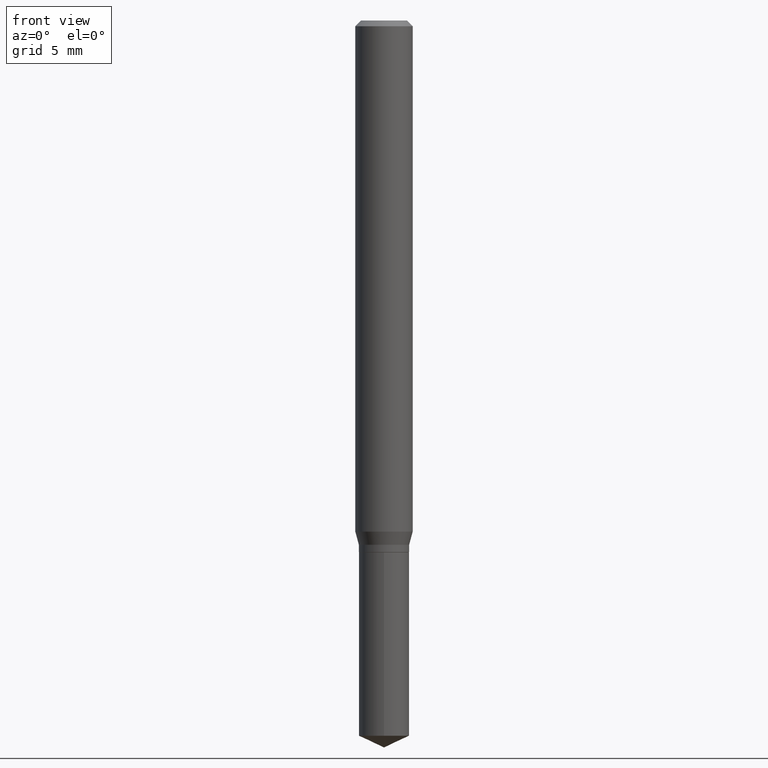
[diagram: clean part render]
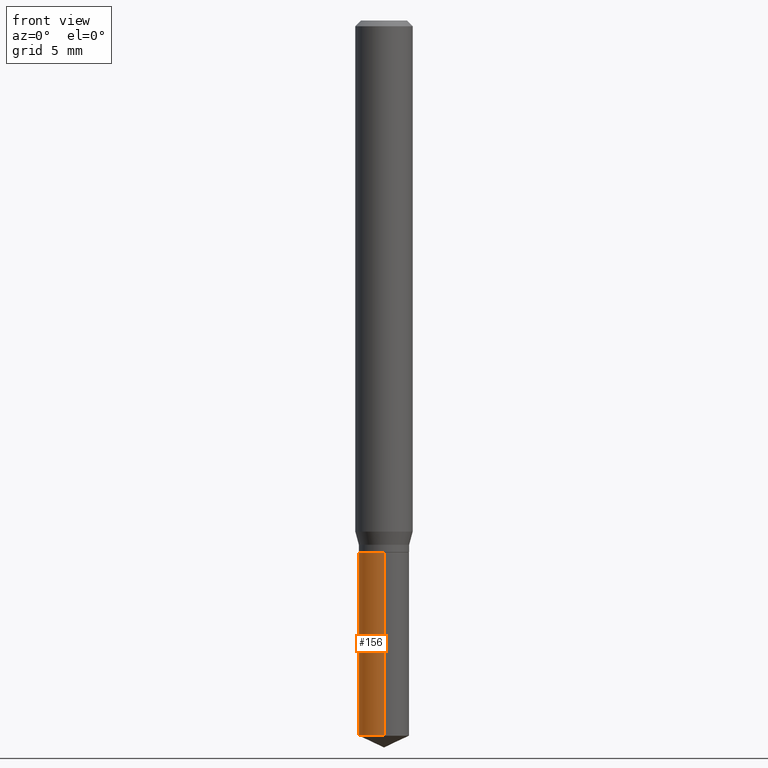
[diagram: same view with one face highlighted and labeled with its STEP entity id]
A machine part, front view. The second image highlights one B-rep face of the part: STEP entity #156.
In plain terms, the highlighted cylindrical surface (edge-blend (fillet) strip) has radius 1.3145 mm, axis along (-0, 0, 1).
Its self-contained STEP definition (entity closure, byte-faithful):
#27 = AXIS2_PLACEMENT_3D ( 'NONE', #460, #166, #282 ) ;
#60 = DIRECTION ( 'NONE',  ( -6.982962677686265133E-15, -1.000000000000000000, 2.639466660545181459E-15 ) ) ;
#61 = EDGE_CURVE ( 'NONE', #219, #287, #354, .T. ) ;
#77 = CYLINDRICAL_SURFACE ( 'NONE', #158, 0.05175000000000000433 ) ;
#98 = EDGE_CURVE ( 'NONE', #437, #219, #340, .T. ) ;
#131 = ORIENTED_EDGE ( 'NONE', *, *, #98, .F. ) ;
#137 = DIRECTION ( 'NONE',  ( -2.445458899330790108E-29, 3.491495526022433599E-15, 1.000000000000000000 ) ) ;
#156 = ADVANCED_FACE ( 'NONE', ( #306 ), #77, .T. ) ;
#158 = AXIS2_PLACEMENT_3D ( 'NONE', #485, #210, #60 ) ;
#160 = AXIS2_PLACEMENT_3D ( 'NONE', #161, #413, #418 ) ;
#161 = CARTESIAN_POINT ( 'NONE',  ( 2.676565608369631794E-29, -3.821426325363822773E-15, -1.094499999999999806 ) ) ;
#166 = DIRECTION ( 'NONE',  ( -2.445458899330790108E-29, 3.491495526022433205E-15, 1.000000000000000000 ) ) ;
#210 = DIRECTION ( 'NONE',  ( -2.445458899330790108E-29, 3.491495526022433205E-15, 1.000000000000000000 ) ) ;
#219 = VERTEX_POINT ( 'NONE', #273 ) ;
#224 = EDGE_CURVE ( 'NONE', #295, #287, #276, .T. ) ;
#228 = DIRECTION ( 'NONE',  ( -2.445458899330790108E-29, 3.491495526022433599E-15, 1.000000000000000000 ) ) ;
#230 = EDGE_CURVE ( 'NONE', #437, #295, #377, .T. ) ;
#232 = CARTESIAN_POINT ( 'NONE',  ( 3.677058657558785503E-16, 0.05174999999999617406, -1.094500000000000028 ) ) ;
#241 = CARTESIAN_POINT ( 'NONE',  ( -3.613683185702375323E-16, -0.05175000000000382766, -1.094499999999999806 ) ) ;
#243 = VECTOR ( 'NONE', #228, 39.37007874015748143 ) ;
#273 = CARTESIAN_POINT ( 'NONE',  ( 3.677058657558878194E-16, 0.05174999999999617406, -1.094500000000000028 ) ) ;
#276 = LINE ( 'NONE', #312, #363 ) ;
#282 = DIRECTION ( 'NONE',  ( -6.982962677686265133E-15, -1.000000000000000000, 5.278933321090362918E-15 ) ) ;
#287 = VERTEX_POINT ( 'NONE', #241 ) ;
#295 = VERTEX_POINT ( 'NONE', #385 ) ;
#299 = EDGE_LOOP ( 'NONE', ( #131, #329, #325, #482 ) ) ;
#306 = FACE_OUTER_BOUND ( 'NONE', #299, .T. ) ;
#312 = CARTESIAN_POINT ( 'NONE',  ( -3.613683185702375323E-16, -0.05175000000000382766, -1.094499999999999806 ) ) ;
#325 = ORIENTED_EDGE ( 'NONE', *, *, #224, .T. ) ;
#329 = ORIENTED_EDGE ( 'NONE', *, *, #230, .T. ) ;
#340 = LINE ( 'NONE', #232, #243 ) ;
#354 = CIRCLE ( 'NONE', #160, 0.05175000000000000433 ) ;
#363 = VECTOR ( 'NONE', #137, 39.37007874015748143 ) ;
#377 = CIRCLE ( 'NONE', #27, 0.05175000000000000433 ) ;
#385 = CARTESIAN_POINT ( 'NONE',  ( -3.613683185702283618E-16, -0.05175000000000515993, -1.471968578690478591 ) ) ;
#413 = DIRECTION ( 'NONE',  ( -2.445458899330790108E-29, 3.491495526022433205E-15, 1.000000000000000000 ) ) ;
#418 = DIRECTION ( 'NONE',  ( -6.982962677686265133E-15, -1.000000000000000000, 2.639466660545181459E-15 ) ) ;
#437 = VERTEX_POINT ( 'NONE', #477 ) ;
#460 = CARTESIAN_POINT ( 'NONE',  ( 3.599649503346007768E-29, -5.139356179075677332E-15, -1.471968578690479035 ) ) ;
#477 = CARTESIAN_POINT ( 'NONE',  ( 3.677058657558878687E-16, 0.05174999999999486955, -1.471968578690479257 ) ) ;
#482 = ORIENTED_EDGE ( 'NONE', *, *, #61, .F. ) ;
#485 = CARTESIAN_POINT ( 'NONE',  ( 2.676565608369631794E-29, -3.821426325363822773E-15, -1.094499999999999806 ) ) ;